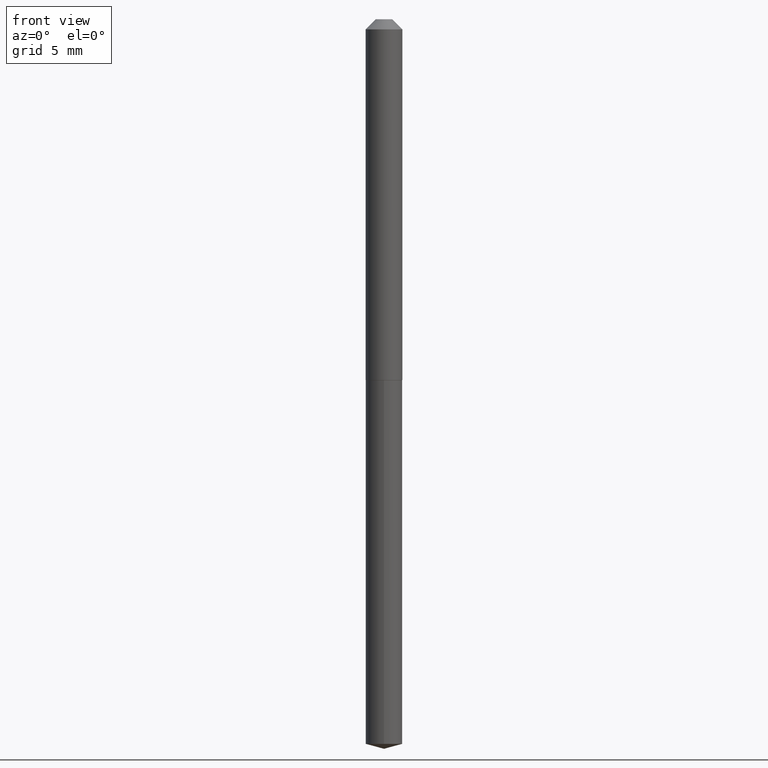
[diagram: clean part render]
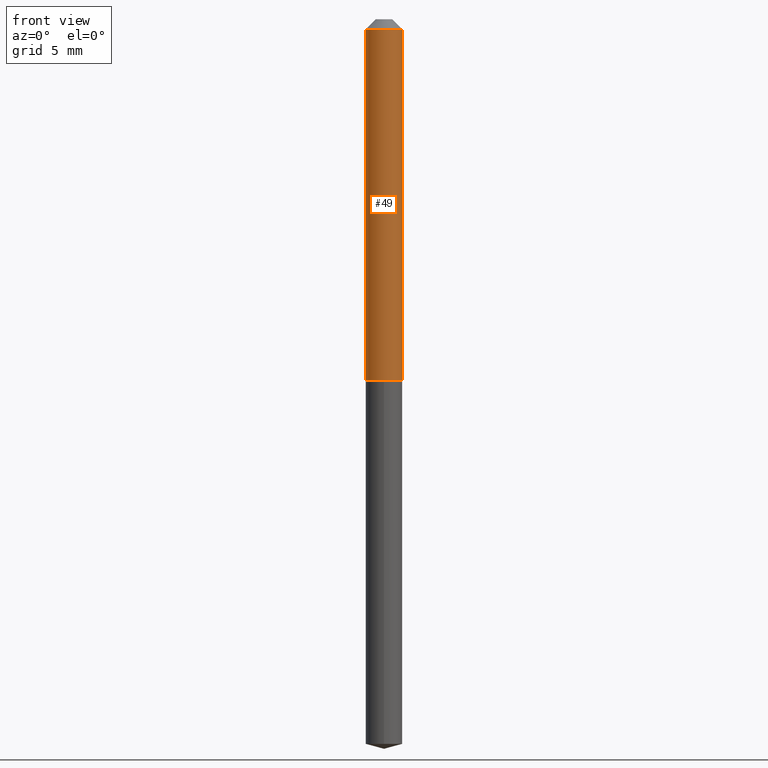
[diagram: same view with one face highlighted and labeled with its STEP entity id]
A machine part, front view. The second image highlights one B-rep face of the part: STEP entity #49.
In plain terms, the highlighted cylindrical surface (edge-blend (fillet) strip) has radius 1.4351 mm, axis along (-0, 0, 1).
Its self-contained STEP definition (entity closure, byte-faithful):
#9 = VECTOR ( 'NONE', #56, 39.37007874015748143 ) ;
#15 = DIRECTION ( 'NONE',  ( 1.000000000000000000, -6.982962677686265133E-15, 0.000000000000000000 ) ) ;
#16 = AXIS2_PLACEMENT_3D ( 'NONE', #126, #278, #313 ) ;
#26 = EDGE_CURVE ( 'NONE', #240, #77, #299, .T. ) ;
#44 = CARTESIAN_POINT ( 'NONE',  ( 0.05650000000000006406, -3.945373912892745484E-16, 2.755039878324706638E-30 ) ) ;
#49 = ADVANCED_FACE ( 'NONE', ( #68 ), #128, .T. ) ;
#56 = DIRECTION ( 'NONE',  ( -2.445468806185136877E-29, 3.491481338843145188E-15, 1.000000000000000000 ) ) ;
#64 = DIRECTION ( 'NONE',  ( -2.445468806185136877E-29, 3.491481338843145188E-15, 1.000000000000000000 ) ) ;
#68 = FACE_OUTER_BOUND ( 'NONE', #191, .T. ) ;
#77 = VERTEX_POINT ( 'NONE', #249 ) ;
#93 = DIRECTION ( 'NONE',  ( 1.000000000000000000, -6.982962677686267499E-15, 4.876176775795935232E-29 ) ) ;
#99 = VERTEX_POINT ( 'NONE', #281 ) ;
#124 = CARTESIAN_POINT ( 'NONE',  ( -0.05650000000000006406, 4.014566457044570602E-16, -2.779198325994025135E-30 ) ) ;
#126 = CARTESIAN_POINT ( 'NONE',  ( 7.642090019328602662E-31, -1.091087918388490267E-16, -0.03125000000000020817 ) ) ;
#128 = CYLINDRICAL_SURFACE ( 'NONE', #265, 0.05650000000000006406 ) ;
#138 = VERTEX_POINT ( 'NONE', #156 ) ;
#154 = DIRECTION ( 'NONE',  ( -2.445468806185136597E-29, 3.491481338843145583E-15, 1.000000000000000000 ) ) ;
#156 = CARTESIAN_POINT ( 'NONE',  ( 0.05650000000000013345, -4.278810380752273274E-15, -1.112499999999999600 ) ) ;
#158 = EDGE_CURVE ( 'NONE', #99, #240, #343, .T. ) ;
#160 = CARTESIAN_POINT ( 'NONE',  ( 0.000000000000000000, 0.000000000000000000, 0.000000000000000000 ) ) ;
#180 = ORIENTED_EDGE ( 'NONE', *, *, #158, .F. ) ;
#191 = EDGE_LOOP ( 'NONE', ( #180, #199, #335, #352 ) ) ;
#195 = CARTESIAN_POINT ( 'NONE',  ( -0.05650000000000000161, -1.595234244946465645E-15, -0.03125000000000020817 ) ) ;
#199 = ORIENTED_EDGE ( 'NONE', *, *, #267, .T. ) ;
#240 = VERTEX_POINT ( 'NONE', #195 ) ;
#249 = CARTESIAN_POINT ( 'NONE',  ( 0.05650000000000000161, -5.036461831281230081E-16, -0.03125000000000020817 ) ) ;
#255 = CIRCLE ( 'NONE', #305, 0.05650000000000013345 ) ;
#265 = AXIS2_PLACEMENT_3D ( 'NONE', #160, #154, #93 ) ;
#267 = EDGE_CURVE ( 'NONE', #99, #138, #255, .T. ) ;
#274 = VECTOR ( 'NONE', #64, 39.37007874015748143 ) ;
#278 = DIRECTION ( 'NONE',  ( -2.445468806185136597E-29, 3.491481338843145583E-15, 1.000000000000000000 ) ) ;
#281 = CARTESIAN_POINT ( 'NONE',  ( -0.05650000000000013345, -3.482816343758540729E-15, -1.112499999999999600 ) ) ;
#290 = CARTESIAN_POINT ( 'NONE',  ( 2.720584046880963679E-29, -3.884272989462998480E-15, -1.112499999999999600 ) ) ;
#299 = CIRCLE ( 'NONE', #16, 0.05650000000000000161 ) ;
#305 = AXIS2_PLACEMENT_3D ( 'NONE', #290, #382, #15 ) ;
#313 = DIRECTION ( 'NONE',  ( 1.000000000000000000, -6.982962677686265922E-15, 0.000000000000000000 ) ) ;
#320 = LINE ( 'NONE', #44, #9 ) ;
#335 = ORIENTED_EDGE ( 'NONE', *, *, #349, .T. ) ;
#343 = LINE ( 'NONE', #124, #274 ) ;
#349 = EDGE_CURVE ( 'NONE', #138, #77, #320, .T. ) ;
#352 = ORIENTED_EDGE ( 'NONE', *, *, #26, .F. ) ;
#382 = DIRECTION ( 'NONE',  ( -2.445468806185136597E-29, 3.491481338843145583E-15, 1.000000000000000000 ) ) ;